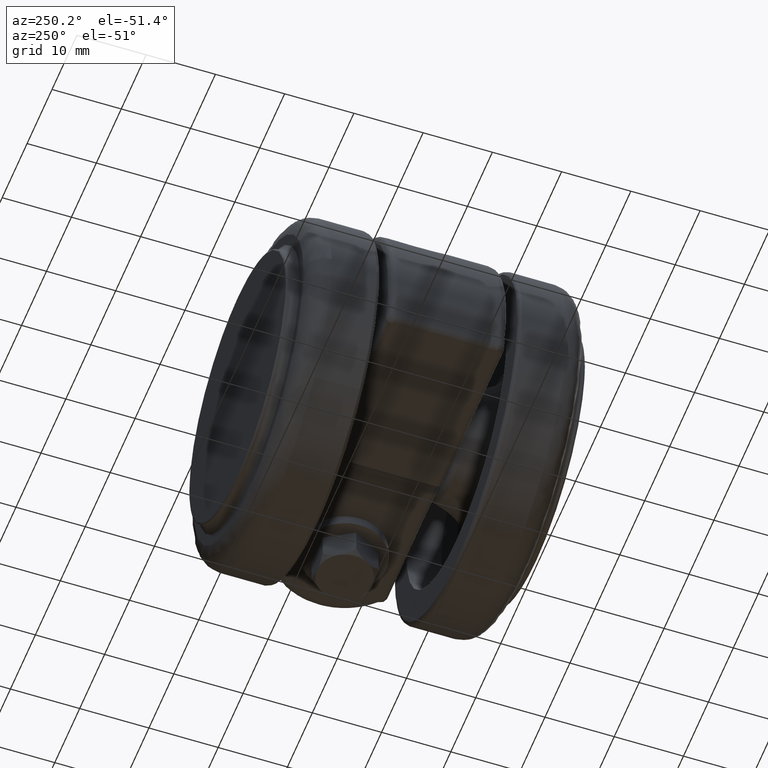
[diagram: clean part render]
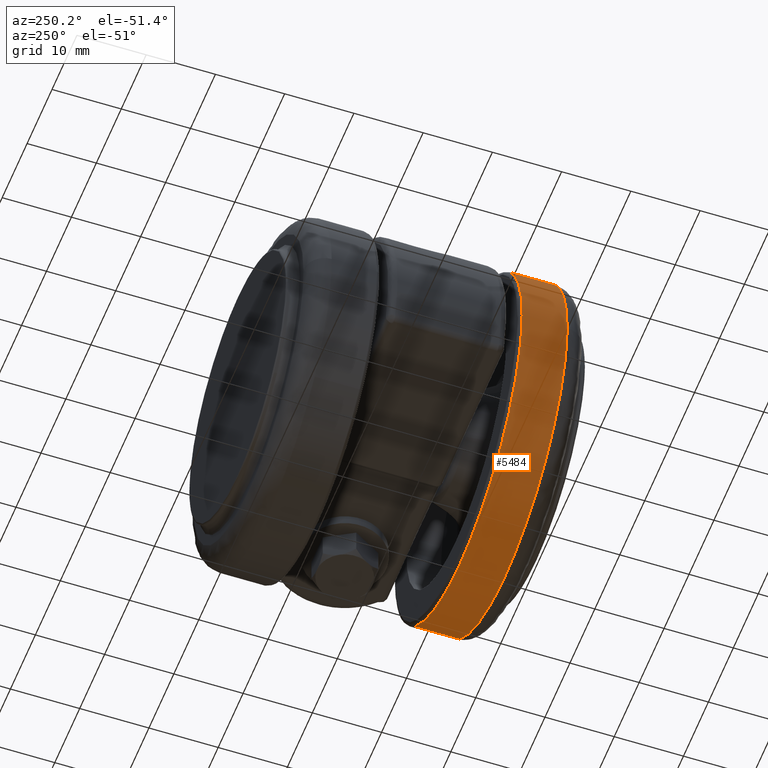
[diagram: same view with one face highlighted and labeled with its STEP entity id]
A machine part, auxiliary view. The second image highlights one B-rep face of the part: STEP entity #5484.
In plain terms, the highlighted face is a freeform B-spline surface patch.
Its self-contained STEP definition (entity closure, byte-faithful):
#5257=CARTESIAN_POINT('',(18.134359921646951,-10.499999999000540,-17.208863711243801));
#5258=VERTEX_POINT('',#5257);
#5274=CARTESIAN_POINT('',(0.0,-10.500000000000000,-25.0));
#5275=VERTEX_POINT('',#5274);
#5276=CARTESIAN_POINT('',(18.134359921646954,-10.499999999000522,-17.208863711243819));
#5277=CARTESIAN_POINT('',(10.740848205312048,-10.499999999587487,-24.999999999999996));
#5278=CARTESIAN_POINT('',(0.0,-10.500000000000000,-25.0));
#5286=(BOUNDED_CURVE()B_SPLINE_CURVE(2,(#5276,#5277,#5278),.UNSPECIFIED.,.F.,.U.)B_SPLINE_CURVE_WITH_KNOTS((3,3),(0.371049520990958,0.500000000000000),.UNSPECIFIED.)CURVE()GEOMETRIC_REPRESENTATION_ITEM()RATIONAL_B_SPLINE_CURVE((0.853699661789174,0.848925116542021,1.0))REPRESENTATION_ITEM(''));
#5287=EDGE_CURVE('',#5258,#5275,#5286,.T.);
#5289=CARTESIAN_POINT('',(-24.998026105095370,-10.499999998055420,-0.314150997086496));
#5290=VERTEX_POINT('',#5289);
#5291=CARTESIAN_POINT('',(0.0,-10.500000000000000,-25.0));
#5292=CARTESIAN_POINT('',(-24.687798247680220,-10.499999999027711,-25.000000000000004));
#5293=CARTESIAN_POINT('',(-24.998026105095366,-10.499999998055420,-0.314150997086496));
#5301=(BOUNDED_CURVE()B_SPLINE_CURVE(2,(#5291,#5292,#5293),.UNSPECIFIED.,.F.,.U.)B_SPLINE_CURVE_WITH_KNOTS((3,3),(0.500000000000000,0.747784295921709),.UNSPECIFIED.)CURVE()GEOMETRIC_REPRESENTATION_ITEM()RATIONAL_B_SPLINE_CURVE((1.0,0.709702639984262,0.994854295643969))REPRESENTATION_ITEM(''));
#5302=EDGE_CURVE('',#5275,#5290,#5301,.T.);
#5353=CARTESIAN_POINT('',(-18.134359921646951,-10.499999999000540,17.208863711243801));
#5354=VERTEX_POINT('',#5353);
#5355=CARTESIAN_POINT('',(-24.998026105095366,-10.499999998055420,-0.314150997086496));
#5356=CARTESIAN_POINT('',(-24.999999999999993,-10.499999998061451,-0.157081699798588));
#5357=CARTESIAN_POINT('',(-25.0,-10.499999998067560,-6.012935E-015));
#5358=CARTESIAN_POINT('',(-25.0,-10.499999998455463,9.973988105134453));
#5359=CARTESIAN_POINT('',(-18.134359921646965,-10.499999999000522,17.208863711243819));
#5367=(BOUNDED_CURVE()B_SPLINE_CURVE(2,(#5355,#5356,#5357,#5358,#5359),.UNSPECIFIED.,.F.,.U.)B_SPLINE_CURVE_WITH_KNOTS((3,2,3),(0.747784295921709,0.750000000000000,0.871049520990958),.UNSPECIFIED.)CURVE()GEOMETRIC_REPRESENTATION_ITEM()RATIONAL_B_SPLINE_CURVE((0.994854295643969,0.997404141202285,1.0,0.858181664644527,0.853699661789174))REPRESENTATION_ITEM(''));
#5368=EDGE_CURVE('',#5290,#5354,#5367,.T.);
#5402=CARTESIAN_POINT('',(18.134359275307190,-17.162500000162758,-17.208864392343848));
#5403=CARTESIAN_POINT('',(0.925494882963342,-17.162500000162758,-35.343223667651039));
#5404=CARTESIAN_POINT('',(-17.208864392343848,-17.162500000162758,-18.134359275307190));
#5405=CARTESIAN_POINT('',(-35.343223667651039,-17.162500000162758,-0.925494882963342));
#5406=CARTESIAN_POINT('',(-18.134359275307190,-17.162500000162758,17.208864392343848));
#5407=CARTESIAN_POINT('',(18.134359275307190,-10.333437498002731,-17.208864392343848));
#5408=CARTESIAN_POINT('',(0.925494882963342,-10.333437498002734,-35.343223667651039));
#5409=CARTESIAN_POINT('',(-17.208864392343848,-10.333437498002731,-18.134359275307190));
#5410=CARTESIAN_POINT('',(-35.343223667651039,-10.333437498002734,-0.925494882963342));
#5411=CARTESIAN_POINT('',(-18.134359275307190,-10.333437498002731,17.208864392343848));
#5419=(BOUNDED_SURFACE()B_SPLINE_SURFACE(2,1,((#5402,#5407),(#5403,#5408),(#5404,#5409),(#5405,#5410),(#5406,#5411)),.UNSPECIFIED.,.F.,.F.,.U.)B_SPLINE_SURFACE_WITH_KNOTS((3,2,3),(2,2),(0.0,41.421356237309503,82.842712474618992),(0.0,6.829062502160029),.UNSPECIFIED.)GEOMETRIC_REPRESENTATION_ITEM()RATIONAL_B_SPLINE_SURFACE(((1.0,1.0),(0.707106781186548,0.707106781186548),(1.0,1.0),(0.707106781186548,0.707106781186548),(1.0,1.0)))REPRESENTATION_ITEM('')SURFACE());
#5420=ORIENTED_EDGE('',*,*,#5287,.F.);
#5421=CARTESIAN_POINT('',(18.134359913672391,-17.000000000057241,-17.208863719647230));
#5422=VERTEX_POINT('',#5421);
#5423=CARTESIAN_POINT('',(18.134359913672391,-17.000000000057241,-17.208863719647230));
#5424=CARTESIAN_POINT('',(18.134359921646951,-10.499999999000540,-17.208863711243801));
#5425=QUASI_UNIFORM_CURVE('',1,(#5423,#5424),.UNSPECIFIED.,.F.,.U.);
#5426=EDGE_CURVE('',#5422,#5258,#5425,.T.);
#5427=ORIENTED_EDGE('',*,*,#5426,.F.);
#5428=CARTESIAN_POINT('',(0.0,-17.0,-25.0));
#5429=VERTEX_POINT('',#5428);
#5430=CARTESIAN_POINT('',(18.134359913672405,-17.000000000057241,-17.208863719647240));
#5431=CARTESIAN_POINT('',(10.740848198450363,-17.000000000023629,-24.999999999999989));
#5432=CARTESIAN_POINT('',(0.0,-17.0,-25.0));
#5440=(BOUNDED_CURVE()B_SPLINE_CURVE(2,(#5430,#5431,#5432),.UNSPECIFIED.,.F.,.U.)B_SPLINE_CURVE_WITH_KNOTS((3,3),(0.371049521060892,0.500000000000000),.UNSPECIFIED.)CURVE()GEOMETRIC_REPRESENTATION_ITEM()RATIONAL_B_SPLINE_CURVE((0.853699661783996,0.848925116623953,1.0))REPRESENTATION_ITEM(''));
#5441=EDGE_CURVE('',#5422,#5429,#5440,.T.);
#5442=ORIENTED_EDGE('',*,*,#5441,.T.);
#5443=CARTESIAN_POINT('',(-24.998026105095370,-17.000000000111360,-0.314150997086535));
#5444=VERTEX_POINT('',#5443);
#5445=CARTESIAN_POINT('',(0.0,-17.0,-25.0));
#5446=CARTESIAN_POINT('',(-24.687798247680163,-17.000000000055685,-24.999999999999996));
#5447=CARTESIAN_POINT('',(-24.998026105095366,-17.000000000111363,-0.314150997086535));
#5455=(BOUNDED_CURVE()B_SPLINE_CURVE(2,(#5445,#5446,#5447),.UNSPECIFIED.,.F.,.U.)B_SPLINE_CURVE_WITH_KNOTS((3,3),(0.500000000000000,0.747784295921709),.UNSPECIFIED.)CURVE()GEOMETRIC_REPRESENTATION_ITEM()RATIONAL_B_SPLINE_CURVE((1.0,0.709702639984262,0.994854295643968))REPRESENTATION_ITEM(''));
#5456=EDGE_CURVE('',#5429,#5444,#5455,.T.);
#5457=ORIENTED_EDGE('',*,*,#5456,.T.);
#5458=CARTESIAN_POINT('',(-18.134359913672391,-17.000000000057241,17.208863719647230));
#5459=VERTEX_POINT('',#5458);
#5460=CARTESIAN_POINT('',(-24.998026105095366,-17.000000000111363,-0.314150997086535));
#5461=CARTESIAN_POINT('',(-24.999999999999993,-17.000000000111022,-0.157081699798603));
#5462=CARTESIAN_POINT('',(-25.0,-17.000000000110671,2.680879E-015));
#5463=CARTESIAN_POINT('',(-25.0,-17.000000000088459,9.973988111848920));
#5464=CARTESIAN_POINT('',(-18.134359913672405,-17.000000000057241,17.208863719647240));
#5472=(BOUNDED_CURVE()B_SPLINE_CURVE(2,(#5460,#5461,#5462,#5463,#5464),.UNSPECIFIED.,.F.,.U.)B_SPLINE_CURVE_WITH_KNOTS((3,2,3),(0.747784295921709,0.750000000000000,0.871049521060892),.UNSPECIFIED.)CURVE()GEOMETRIC_REPRESENTATION_ITEM()RATIONAL_B_SPLINE_CURVE((0.994854295643968,0.997404141202285,1.0,0.858181664562594,0.853699661783996))REPRESENTATION_ITEM(''));
#5473=EDGE_CURVE('',#5444,#5459,#5472,.T.);
#5474=ORIENTED_EDGE('',*,*,#5473,.T.);
#5475=CARTESIAN_POINT('',(-18.134359913672391,-17.000000000057241,17.208863719647230));
#5476=CARTESIAN_POINT('',(-18.134359921646951,-10.499999999000540,17.208863711243801));
#5477=QUASI_UNIFORM_CURVE('',1,(#5475,#5476),.UNSPECIFIED.,.F.,.U.);
#5478=EDGE_CURVE('',#5459,#5354,#5477,.T.);
#5479=ORIENTED_EDGE('',*,*,#5478,.T.);
#5480=ORIENTED_EDGE('',*,*,#5368,.F.);
#5481=ORIENTED_EDGE('',*,*,#5302,.F.);
#5482=EDGE_LOOP('',(#5420,#5427,#5442,#5457,#5474,#5479,#5480,#5481));
#5483=FACE_OUTER_BOUND('',#5482,.T.);
#5484=ADVANCED_FACE('',(#5483),#5419,.T.);